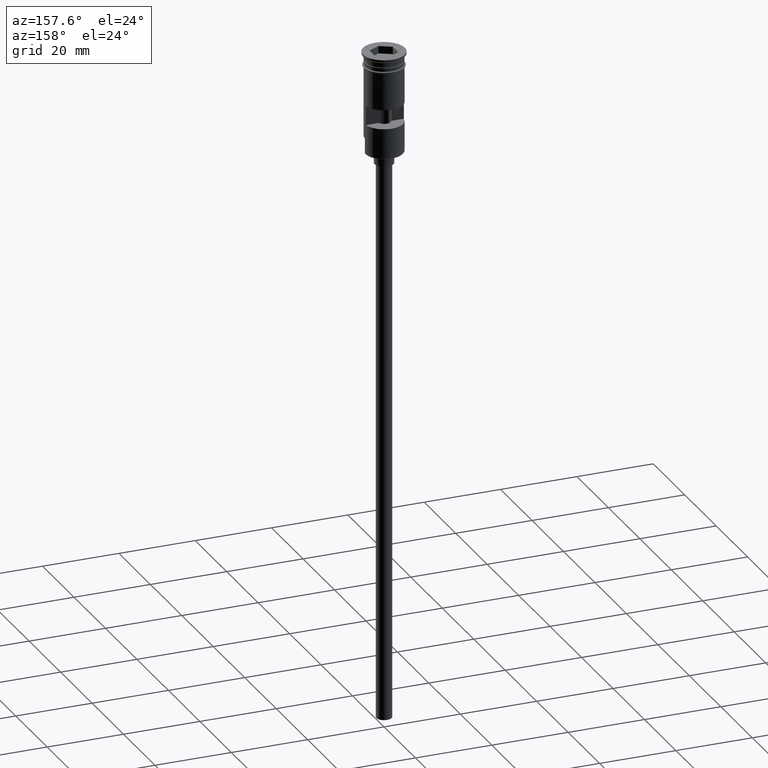
[diagram: clean part render]
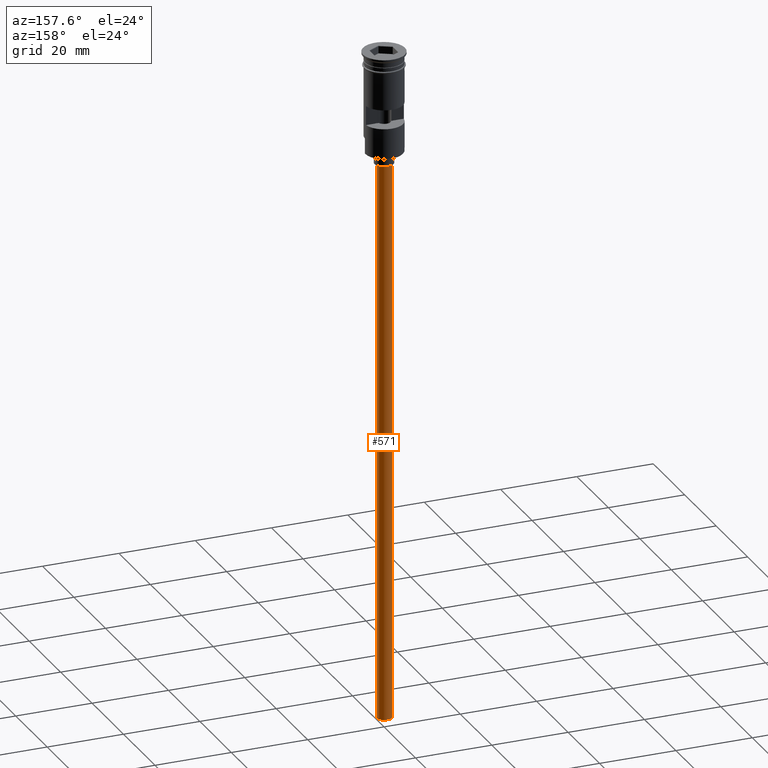
[diagram: same view with one face highlighted and labeled with its STEP entity id]
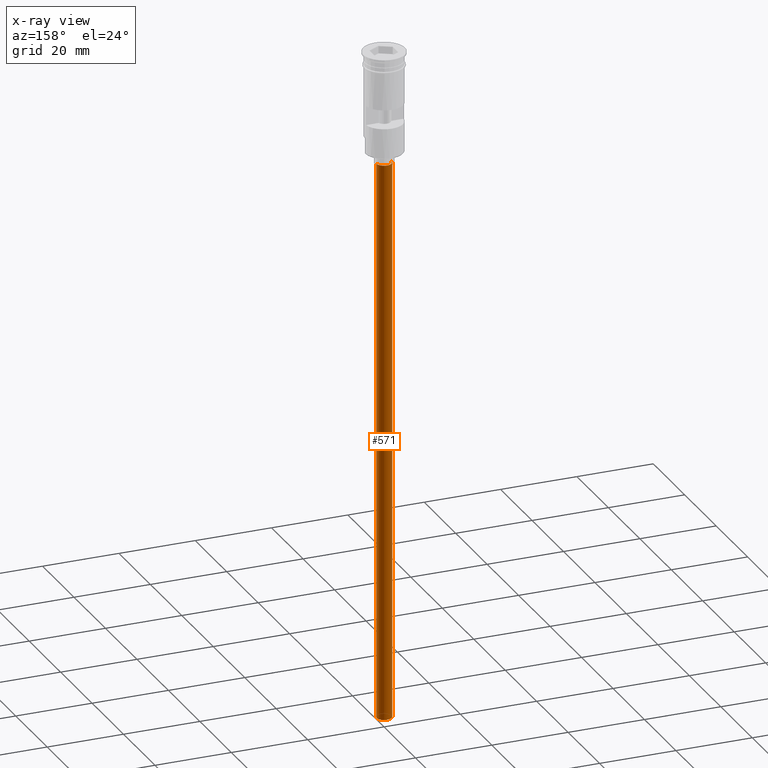
[diagram: x-ray of the same camera — body ghosted, the highlighted face saturated]
A machine part, auxiliary view. The second image highlights one B-rep face of the part: STEP entity #571.
The next image is the same camera in x-ray: the body ghosted, the highlighted face saturated — about 0% of this face is hidden behind the body in this view.
In plain terms, the highlighted cylindrical surface (edge-blend (fillet) strip) has radius 2 mm, axis along (-0, -0, 1).
Its self-contained STEP definition (entity closure, byte-faithful):
#3 = DIRECTION ( 'NONE',  ( 0.000000000000000000, 0.000000000000000000, -1.000000000000000000 ) ) ;
#25 = EDGE_LOOP ( 'NONE', ( #771, #111, #1334, #935 ) ) ;
#32 = VERTEX_POINT ( 'NONE', #608 ) ;
#68 = VERTEX_POINT ( 'NONE', #1234 ) ;
#111 = ORIENTED_EDGE ( 'NONE', *, *, #1005, .T. ) ;
#203 = DIRECTION ( 'NONE',  ( -1.000000000000000000, 0.000000000000000000, 0.000000000000000000 ) ) ;
#207 = VERTEX_POINT ( 'NONE', #640 ) ;
#215 = AXIS2_PLACEMENT_3D ( 'NONE', #1422, #1068, #938 ) ;
#254 = DIRECTION ( 'NONE',  ( -0.000000000000000000, -0.000000000000000000, 1.000000000000000000 ) ) ;
#368 = AXIS2_PLACEMENT_3D ( 'NONE', #1237, #758, #203 ) ;
#375 = CARTESIAN_POINT ( 'NONE',  ( 0.000000000000000000, 0.000000000000000000, -176.5000000000000000 ) ) ;
#432 = FACE_OUTER_BOUND ( 'NONE', #25, .T. ) ;
#438 = CYLINDRICAL_SURFACE ( 'NONE', #215, 2.000000000000000000 ) ;
#571 = ADVANCED_FACE ( 'NONE', ( #432 ), #438, .T. ) ;
#580 = CIRCLE ( 'NONE', #1480, 2.000000000000000000 ) ;
#608 = CARTESIAN_POINT ( 'NONE',  ( -2.000000000000000000, 2.449293598294706414E-16, -176.5000000000000000 ) ) ;
#640 = CARTESIAN_POINT ( 'NONE',  ( -2.000000000000000000, 2.449293598294706414E-16, -29.50000000000000000 ) ) ;
#750 = LINE ( 'NONE', #873, #870 ) ;
#758 = DIRECTION ( 'NONE',  ( 0.000000000000000000, 0.000000000000000000, -1.000000000000000000 ) ) ;
#771 = ORIENTED_EDGE ( 'NONE', *, *, #930, .F. ) ;
#793 = CIRCLE ( 'NONE', #368, 2.000000000000000000 ) ;
#846 = VECTOR ( 'NONE', #1506, 1000.000000000000000 ) ;
#870 = VECTOR ( 'NONE', #254, 1000.000000000000000 ) ;
#873 = CARTESIAN_POINT ( 'NONE',  ( -2.000000000000000000, 2.449293598294706414E-16, -176.5000000000000000 ) ) ;
#883 = CARTESIAN_POINT ( 'NONE',  ( 2.000000000000000000, 0.000000000000000000, -176.5000000000000000 ) ) ;
#930 = EDGE_CURVE ( 'NONE', #32, #68, #580, .T. ) ;
#935 = ORIENTED_EDGE ( 'NONE', *, *, #1116, .F. ) ;
#938 = DIRECTION ( 'NONE',  ( 1.000000000000000000, 0.000000000000000000, 0.000000000000000000 ) ) ;
#1005 = EDGE_CURVE ( 'NONE', #32, #207, #750, .T. ) ;
#1015 = EDGE_CURVE ( 'NONE', #207, #1592, #793, .T. ) ;
#1068 = DIRECTION ( 'NONE',  ( -0.000000000000000000, -0.000000000000000000, 1.000000000000000000 ) ) ;
#1116 = EDGE_CURVE ( 'NONE', #68, #1592, #1250, .T. ) ;
#1117 = DIRECTION ( 'NONE',  ( -1.000000000000000000, 0.000000000000000000, 0.000000000000000000 ) ) ;
#1131 = CARTESIAN_POINT ( 'NONE',  ( 2.000000000000000000, 0.000000000000000000, -29.50000000000000000 ) ) ;
#1234 = CARTESIAN_POINT ( 'NONE',  ( 2.000000000000000000, 0.000000000000000000, -176.5000000000000000 ) ) ;
#1237 = CARTESIAN_POINT ( 'NONE',  ( 0.000000000000000000, 0.000000000000000000, -29.50000000000000000 ) ) ;
#1250 = LINE ( 'NONE', #883, #846 ) ;
#1334 = ORIENTED_EDGE ( 'NONE', *, *, #1015, .T. ) ;
#1422 = CARTESIAN_POINT ( 'NONE',  ( 0.000000000000000000, 0.000000000000000000, -176.5000000000000000 ) ) ;
#1480 = AXIS2_PLACEMENT_3D ( 'NONE', #375, #3, #1117 ) ;
#1506 = DIRECTION ( 'NONE',  ( -0.000000000000000000, -0.000000000000000000, 1.000000000000000000 ) ) ;
#1592 = VERTEX_POINT ( 'NONE', #1131 ) ;